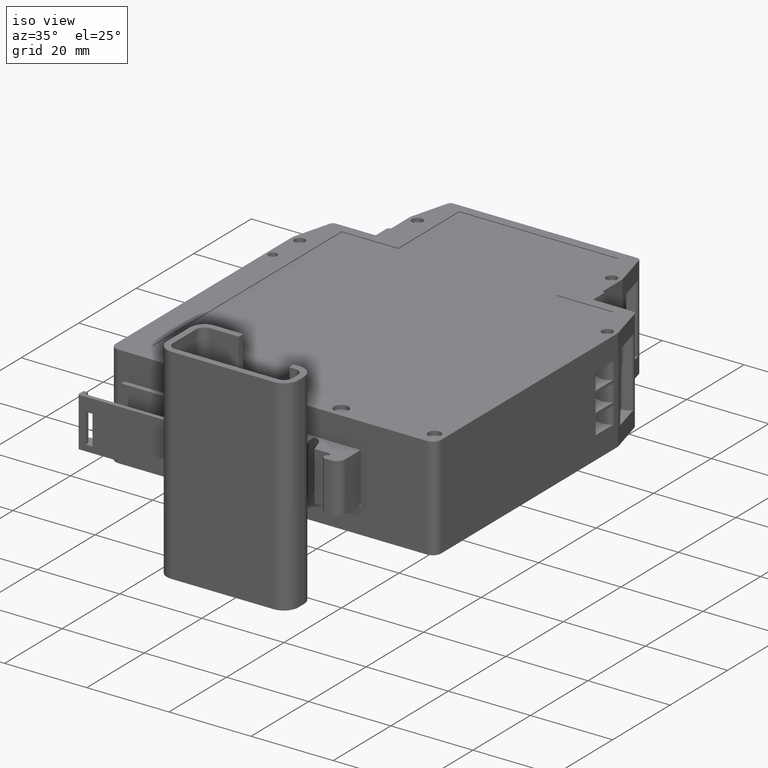
[diagram: clean part render]
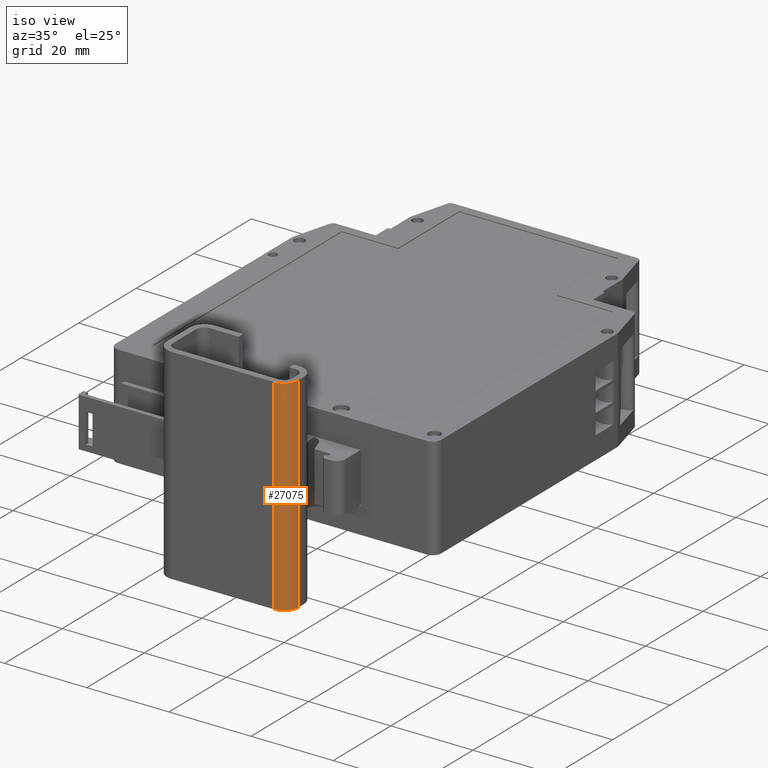
[diagram: same view with one face highlighted and labeled with its STEP entity id]
A machine part, iso view. The second image highlights one B-rep face of the part: STEP entity #27075.
In plain terms, the highlighted cylindrical surface (edge-blend (fillet) strip) has radius 3.5 mm, axis along (0, 0, 1).
Its self-contained STEP definition (entity closure, byte-faithful):
#27017=CARTESIAN_POINT('',(17.750000000000000,-3.999999999999996,25.0));
#27018=VERTEX_POINT('',#27017);
#27025=CARTESIAN_POINT('',(17.750000000000000,-3.999999999999996,-25.0));
#27026=VERTEX_POINT('',#27025);
#27027=CARTESIAN_POINT('',(17.750000000000000,-3.999999999999996,-25.0));
#27028=DIRECTION('',(0.0,0.0,1.0));
#27029=VECTOR('',#27028,50.0);
#27030=LINE('',#27027,#27029);
#27031=EDGE_CURVE('',#27026,#27018,#27030,.T.);
#27043=CARTESIAN_POINT('',(14.250000000000000,-3.999999999999996,-25.0));
#27044=DIRECTION('',(0.0,0.0,1.0));
#27045=DIRECTION('',(1.0,0.0,0.0));
#27046=AXIS2_PLACEMENT_3D('',#27043,#27044,#27045);
#27047=CYLINDRICAL_SURFACE('',#27046,3.500000000000000);
#27048=CARTESIAN_POINT('',(14.250000000000000,-7.499999999999996,25.0));
#27049=VERTEX_POINT('',#27048);
#27050=CARTESIAN_POINT('',(14.250000000000000,-3.999999999999996,25.0));
#27051=DIRECTION('',(0.0,0.0,-1.0));
#27052=DIRECTION('',(1.0,0.0,0.0));
#27053=AXIS2_PLACEMENT_3D('',#27050,#27051,#27052);
#27054=CIRCLE('',#27053,3.500000000000000);
#27055=EDGE_CURVE('',#27018,#27049,#27054,.T.);
#27056=ORIENTED_EDGE('',*,*,#27055,.T.);
#27057=CARTESIAN_POINT('',(14.250000000000000,-7.499999999999996,-25.0));
#27058=VERTEX_POINT('',#27057);
#27059=CARTESIAN_POINT('',(14.250000000000000,-7.499999999999996,-25.0));
#27060=DIRECTION('',(0.0,0.0,1.0));
#27061=VECTOR('',#27060,50.0);
#27062=LINE('',#27059,#27061);
#27063=EDGE_CURVE('',#27058,#27049,#27062,.T.);
#27064=ORIENTED_EDGE('',*,*,#27063,.F.);
#27065=CARTESIAN_POINT('',(14.250000000000000,-3.999999999999996,-25.0));
#27066=DIRECTION('',(0.0,0.0,-1.0));
#27067=DIRECTION('',(1.0,0.0,0.0));
#27068=AXIS2_PLACEMENT_3D('',#27065,#27066,#27067);
#27069=CIRCLE('',#27068,3.500000000000000);
#27070=EDGE_CURVE('',#27026,#27058,#27069,.T.);
#27071=ORIENTED_EDGE('',*,*,#27070,.F.);
#27072=ORIENTED_EDGE('',*,*,#27031,.T.);
#27073=EDGE_LOOP('',(#27056,#27064,#27071,#27072));
#27074=FACE_OUTER_BOUND('',#27073,.T.);
#27075=ADVANCED_FACE('',(#27074),#27047,.T.);